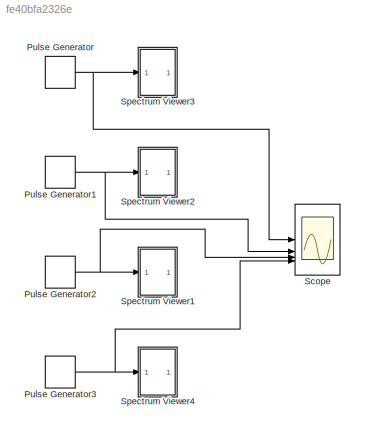
MODEL slx_fe40bfa2326e
KIND model
CONFIG AbsTol = auto
CONFIG EnableMultiTasking = off
CONFIG FixedStep = auto
CONFIG MaxStep = auto
CONFIG MinStep = auto
CONFIG RelTol = 1e-3
CONFIG SampleTimeConstraint = Unconstrained
CONFIG SolverName = VariableStepAuto
CONFIG StartTime = 0.0
CONFIG StopTime = 2
BLOCK [DiscretePulseGenerator] Pulse Generator
  Period = 5e-4
  PulseType = Time based
  PulseWidth = 2.5
BLOCK [DiscretePulseGenerator] Pulse Generator1
  Period = 5e-4
  PulseType = Time based
  PulseWidth = 10
BLOCK [DiscretePulseGenerator] Pulse Generator2
  Period = 2.5e-4
  PulseType = Time based
  PulseWidth = 10
BLOCK [DiscretePulseGenerator] Pulse Generator3
  Amplitude = 1/2
  Period = 1/10000
  PulseType = Time based
  PulseWidth = 12.5
BLOCK [Scope] Scope
  Floating = off
  NumInputPorts = 4
  ScopeSpecificationString = Simulink.scopes.TimeScopeBlockCfg('CurrentConfiguration', extmgr.ConfigurationSet(extmgr.Configuration('Core','General UI',true),extmgr.Configuration('Core','Source UI',true),extmgr.Configuration('Sources','WiredSimulink',true),extmgr.Configuration('Visuals','Time Domain',true),extmgr.Configuration('Tools','Plot Navigation',true),extmgr.Configuration('Tools','Measurements',true)),'Version','2024b'...<+1ch>
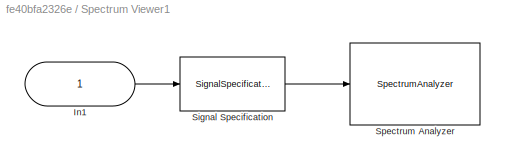
BLOCK [SubSystem] Spectrum Viewer1
BLOCK [Inport] Spectrum Viewer1/In1
BLOCK [SignalSpecification] Spectrum Viewer1/Signal Specification
  SampleTime = 1/32e4
BLOCK [SpectrumAnalyzer] Spectrum Viewer1/Spectrum Analyzer
  AllowFFTLengthLessThanSamplesPerUpdate = on
  AveragingMethod = Running
  AxesScaling = Manual
  DefaultConfigurationName = spbscopes.SpectrumAnalyzerBlockCfg
  FrequencyInputRBWFromPort = 0
  FrequencyInputRBWPort = 0
  FrequencyResolutionMethod = Window length
  FrequencySpan = Start and stop frequencies
  FrequencyVectorFromPort = 0
  FrequencyVectorPort = 0
  GraphicalSettings = {"GraphicalSettings":{"Style":{"BackgroundColor":[0.12941176470588237,0.12941176470588237,0.12941176470588237],"AxesColor":[0,0,0],"LabelsColor":[0.6862745098039216,0.6862745098039216,0.6862745098039216],"PreserveColors":false,"Visible":[true],"LineStyle":["-"],"LineWidth":[1.5],"BarWidth":[0.9],"LineColor":[[1,0.9098039215686274,0.39215686274509803]],"LineFaceAlpha":[1],"LineEdgeAlpha":[1],"Marke...<+945ch>  <repeated x4 — deduplicated; at blocks: Spectrum Analyzer>
  IsFrequencyInputMode = 0
  Method = Welch
  OverlapPercent = 6.25
  ScopeFrameLocation = window
  ScopeSpecificationString = spbscopes.SpectrumAnalyzerBlockCfg('CurrentConfiguration', extmgr.ConfigurationSet(extmgr.Configuration('Core','General UI',true),extmgr.Configuration('Core','Source UI',true),extmgr.Configuration('Sources','WiredSimulink',true),extmgr.Configuration('Sources','SimulinkEvent',false),extmgr.Configuration('Sources','Simulink',false),extmgr.Configuration('Sources','File',false),extmgr.Configuration('S...<+2845ch>  <repeated x4 — deduplicated; at blocks: Spectrum Analyzer>
  SelectedToolstripTab = spectrumAnalyzerToolstrip.estimationTab
  Span = 20000
  SpectralAverages = 200
  SpectrumUnits = Watts
  StartFrequency = -160000
  StopFrequency = 160000
  Visible = on
  WasSavedAsWebScope = on
  WindowPosition = [316.000000,275.000000,800.000000,782.000000,]
  YLimits = [-0.0009551920672624978,0.010464319450914087]
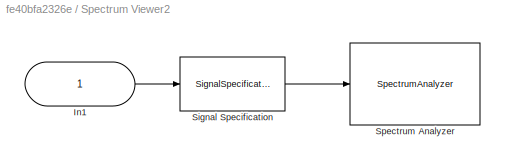
BLOCK [SubSystem] Spectrum Viewer2
BLOCK [Inport] Spectrum Viewer2/In1
BLOCK [SignalSpecification] Spectrum Viewer2/Signal Specification
  SampleTime = 1/32e4
BLOCK [SpectrumAnalyzer] Spectrum Viewer2/Spectrum Analyzer
  AllowFFTLengthLessThanSamplesPerUpdate = on
  AveragingMethod = Running
  AxesScaling = Manual
  DefaultConfigurationName = spbscopes.SpectrumAnalyzerBlockCfg
  FrequencyInputRBWFromPort = 0
  FrequencyInputRBWPort = 0
  FrequencyResolutionMethod = Window length
  FrequencySpan = Start and stop frequencies
  FrequencyVectorFromPort = 0
  FrequencyVectorPort = 0
  IsFrequencyInputMode = 0
  Method = Welch
  OverlapPercent = 6.25
  ScopeFrameLocation = window
  SelectedToolstripTab = spectrumAnalyzerToolstrip.estimationTab
  Span = 20000
  SpectralAverages = 200
  SpectrumUnits = Watts
  StartFrequency = -160000
  StopFrequency = 160000
  Visible = on
  WasSavedAsWebScope = on
  WindowPosition = [316.000000,275.000000,800.000000,782.000000,]
  YLimits = [-0.0009551920672624978,0.010464319450914087]
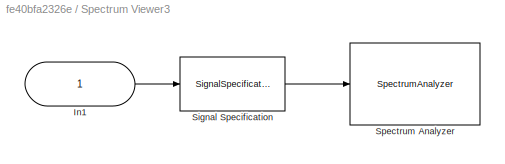
BLOCK [SubSystem] Spectrum Viewer3
BLOCK [Inport] Spectrum Viewer3/In1
BLOCK [SignalSpecification] Spectrum Viewer3/Signal Specification
  SampleTime = 1/32e4
BLOCK [SpectrumAnalyzer] Spectrum Viewer3/Spectrum Analyzer
  AllowFFTLengthLessThanSamplesPerUpdate = on
  AveragingMethod = Running
  AxesScaling = Manual
  DefaultConfigurationName = spbscopes.SpectrumAnalyzerBlockCfg
  FrequencyInputRBWFromPort = 0
  FrequencyInputRBWPort = 0
  FrequencyResolutionMethod = Window length
  FrequencySpan = Start and stop frequencies
  FrequencyVectorFromPort = 0
  FrequencyVectorPort = 0
  IsFrequencyInputMode = 0
  Method = Welch
  OverlapPercent = 6.25
  ScopeFrameLocation = window
  SelectedToolstripTab = spectrumAnalyzerToolstrip.estimationTab
  Span = 20000
  SpectralAverages = 200
  SpectrumUnits = Watts
  StartFrequency = -160000
  StopFrequency = 160000
  Visible = on
  WasSavedAsWebScope = on
  WindowPosition = [316.000000,275.000000,800.000000,782.000000,]
  YLimits = [-0.0009551920672624978,0.010464319450914087]
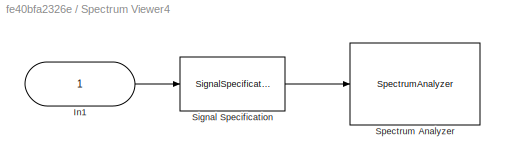
BLOCK [SubSystem] Spectrum Viewer4
BLOCK [Inport] Spectrum Viewer4/In1
BLOCK [SignalSpecification] Spectrum Viewer4/Signal Specification
  SampleTime = 1/32e4
BLOCK [SpectrumAnalyzer] Spectrum Viewer4/Spectrum Analyzer
  AllowFFTLengthLessThanSamplesPerUpdate = on
  AveragingMethod = Running
  AxesScaling = Manual
  DefaultConfigurationName = spbscopes.SpectrumAnalyzerBlockCfg
  FrequencyInputRBWFromPort = 0
  FrequencyInputRBWPort = 0
  FrequencyResolutionMethod = Window length
  FrequencySpan = Start and stop frequencies
  FrequencyVectorFromPort = 0
  FrequencyVectorPort = 0
  IsFrequencyInputMode = 0
  Method = Welch
  OverlapPercent = 6.25
  ScopeFrameLocation = window
  SelectedToolstripTab = spectrumAnalyzerToolstrip.estimationTab
  Span = 20000
  SpectralAverages = 200
  SpectrumUnits = Watts
  StartFrequency = -160000
  StopFrequency = 160000
  Visible = on
  WasSavedAsWebScope = on
  WindowPosition = [316.000000,275.000000,800.000000,782.000000,]
  YLimits = [-0.0009551920672624978,0.010464319450914087]
NET Pulse Generator1:1 -> Scope:2, Spectrum Viewer2:1
NET Pulse Generator2:1 -> Scope:3, Spectrum Viewer1:1
NET Pulse Generator3:1 -> Scope:4, Spectrum Viewer4:1
NET Pulse Generator:1 -> Scope:1, Spectrum Viewer3:1
LINE Spectrum Viewer1/In1:1 -> Spectrum Viewer1/Signal Specification:1
LINE Spectrum Viewer1/Signal Specification:1 -> Spectrum Viewer1/Spectrum Analyzer:1
LINE Spectrum Viewer2/In1:1 -> Spectrum Viewer2/Signal Specification:1
LINE Spectrum Viewer2/Signal Specification:1 -> Spectrum Viewer2/Spectrum Analyzer:1
LINE Spectrum Viewer3/In1:1 -> Spectrum Viewer3/Signal Specification:1
LINE Spectrum Viewer3/Signal Specification:1 -> Spectrum Viewer3/Spectrum Analyzer:1
LINE Spectrum Viewer4/In1:1 -> Spectrum Viewer4/Signal Specification:1
LINE Spectrum Viewer4/Signal Specification:1 -> Spectrum Viewer4/Spectrum Analyzer:1
note: NET lines group one-source signal fan-out (src -> all destinations, sorted); 1:1 wires keep LINE
